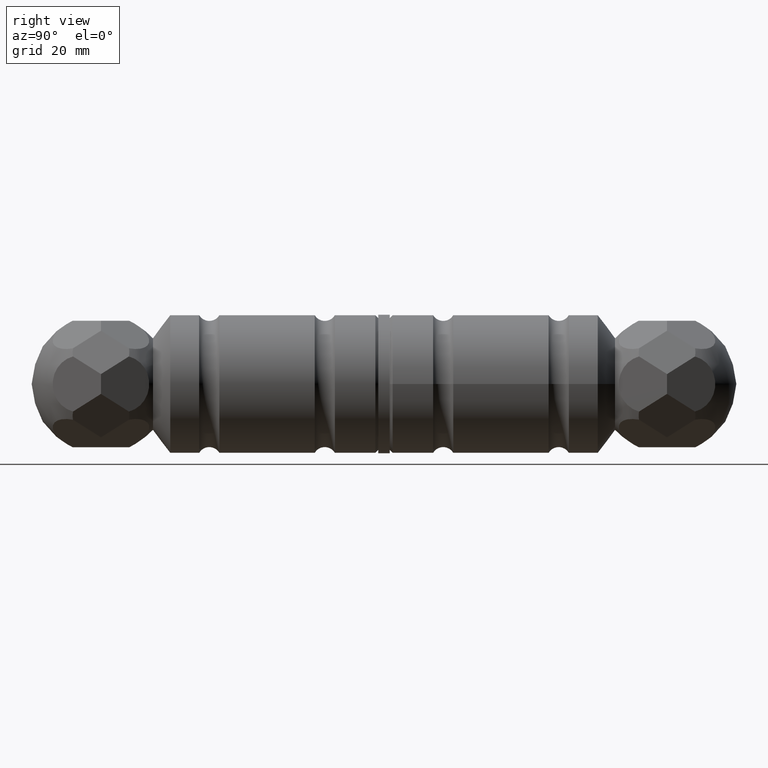
[diagram: clean part render]
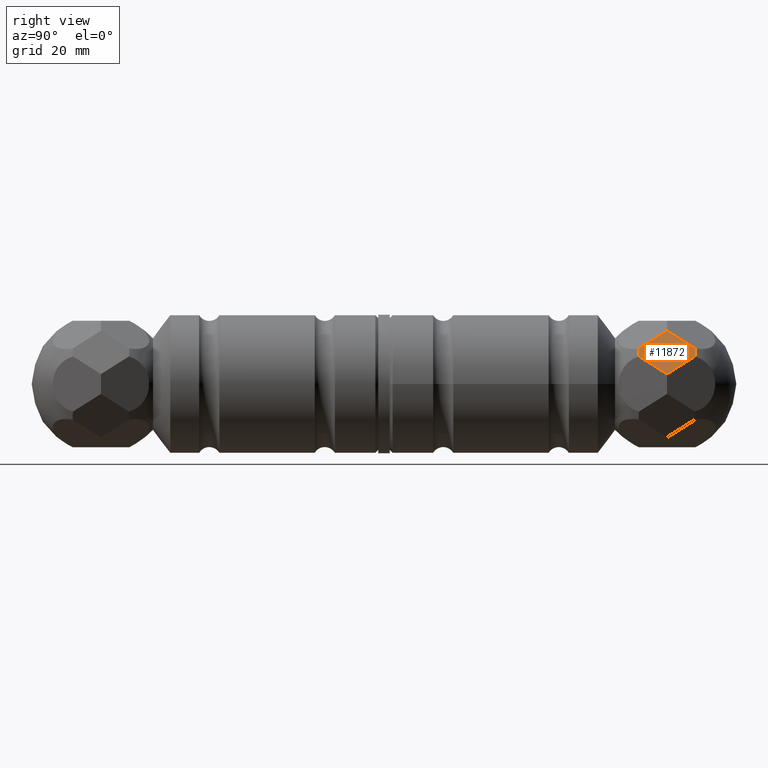
[diagram: same view with one face highlighted and labeled with its STEP entity id]
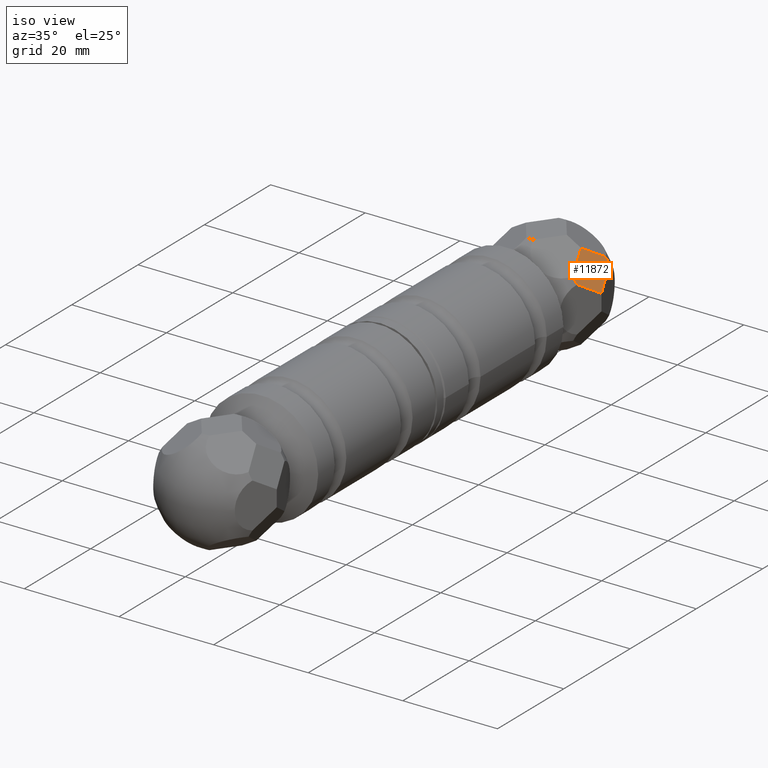
[diagram: same view with one face highlighted and labeled with its STEP entity id]
A machine part, right view. The second image highlights one B-rep face of the part: STEP entity #11872.
A second angle (iso view) of the same face is appended — the face is thin or edge-on in the first view.
In plain terms, the highlighted planar face has unit normal (-0.866, 0, -0.5).
Its self-contained STEP definition (entity closure, byte-faithful):
#338 = FACE_OUTER_BOUND ( 'NONE', #3197, .T. ) ;
#530 = DIRECTION ( 'NONE',  ( 0.8660254037844345998, -0.000000000000000000, 0.5000000000000072164 ) ) ;
#681 = EDGE_CURVE ( 'NONE', #10436, #8200, #11236, .T. ) ;
#871 = LINE ( 'NONE', #6743, #10309 ) ;
#1199 = CARTESIAN_POINT ( 'NONE',  ( 9.075063361975958642, 43.15934694148806017, 6.181529175150805244 ) ) ;
#1496 = VERTEX_POINT ( 'NONE', #9253 ) ;
#1973 = LINE ( 'NONE', #7622, #7147 ) ;
#1983 = VECTOR ( 'NONE', #10528, 1000.000000000000114 ) ;
#2041 = DIRECTION ( 'NONE',  ( -0.2942623679600596676, 0.8084792113654893919, 0.5096773720623416493 ) ) ;
#2046 = CARTESIAN_POINT ( 'NONE',  ( 10.90122265143456559, 45.93520489747793789, 3.018528503094673354 ) ) ;
#2169 = AXIS2_PLACEMENT_3D ( 'NONE', #10948, #530, #4337 ) ;
#2669 = AXIS2_PLACEMENT_3D ( 'NONE', #3402, #11874, #7221 ) ;
#2701 = CARTESIAN_POINT ( 'NONE',  ( 9.890892980903240428, 43.15934694148808859, 4.768470824849224243 ) ) ;
#2716 = AXIS2_PLACEMENT_3D ( 'NONE', #8663, #11362, #6682 ) ;
#2777 = ORIENTED_EDGE ( 'NONE', *, *, #11292, .T. ) ;
#3197 = EDGE_LOOP ( 'NONE', ( #4488, #7249, #8357, #2777, #7307, #6364 ) ) ;
#3286 = VERTEX_POINT ( 'NONE', #8097 ) ;
#3402 = CARTESIAN_POINT ( 'NONE',  ( 9.482978171439562232, 47.99999999999999289, 5.475000000000080469 ) ) ;
#3535 = EDGE_CURVE ( 'NONE', #9520, #1496, #871, .T. ) ;
#3628 = CARTESIAN_POINT ( 'NONE',  ( 9.890892980903247533, 52.84065305851191141, 4.768470824849213585 ) ) ;
#3968 = DIRECTION ( 'NONE',  ( -0.2942623679600598341, -0.8084792113654891699, 0.5096773720623419823 ) ) ;
#4043 = CARTESIAN_POINT ( 'NONE',  ( 10.90122265143457270, 50.06479510252207632, 3.018528503094658699 ) ) ;
#4337 = DIRECTION ( 'NONE',  ( -0.5000000000000073275, 0.000000000000000000, 0.8660254037844344888 ) ) ;
#4488 = ORIENTED_EDGE ( 'NONE', *, *, #3535, .F. ) ;
#4501 = LINE ( 'NONE', #2046, #1983 ) ;
#4728 = EDGE_CURVE ( 'NONE', #9520, #9401, #10301, .T. ) ;
#6364 = ORIENTED_EDGE ( 'NONE', *, *, #11861, .T. ) ;
#6682 = DIRECTION ( 'NONE',  ( -0.5000000000000072164, 0.000000000000000000, 0.8660254037844344888 ) ) ;
#6743 = CARTESIAN_POINT ( 'NONE',  ( 8.064733691444594399, 45.93520489747793789, 7.931471496905416529 ) ) ;
#7147 = VECTOR ( 'NONE', #3968, 1000.000000000000114 ) ;
#7221 = DIRECTION ( 'NONE',  ( -0.5000000000000073275, 0.000000000000000000, 0.8660254037844344888 ) ) ;
#7249 = ORIENTED_EDGE ( 'NONE', *, *, #4728, .T. ) ;
#7307 = ORIENTED_EDGE ( 'NONE', *, *, #681, .T. ) ;
#7622 = CARTESIAN_POINT ( 'NONE',  ( 8.064733691444585517, 50.06479510252206211, 7.931471496905430740 ) ) ;
#8097 = CARTESIAN_POINT ( 'NONE',  ( 11.65274660861123657, 48.00000000000002132, 1.716850826159487031 ) ) ;
#8200 = VERTEX_POINT ( 'NONE', #11931 ) ;
#8357 = ORIENTED_EDGE ( 'NONE', *, *, #10569, .F. ) ;
#8663 = CARTESIAN_POINT ( 'NONE',  ( 9.482978171439560455, 47.99999999999999289, 5.475000000000078693 ) ) ;
#9253 = CARTESIAN_POINT ( 'NONE',  ( 7.313209734267904771, 48.00000000000000711, 9.233149173840631718 ) ) ;
#9401 = VERTEX_POINT ( 'NONE', #2701 ) ;
#9520 = VERTEX_POINT ( 'NONE', #1199 ) ;
#10301 = CIRCLE ( 'NONE', #2669, 4.908920451586058498 ) ;
#10309 = VECTOR ( 'NONE', #2041, 1000.000000000000114 ) ;
#10436 = VERTEX_POINT ( 'NONE', #3628 ) ;
#10528 = DIRECTION ( 'NONE',  ( -0.2942623679600548936, -0.8084792113654963863, 0.5096773720623334336 ) ) ;
#10569 = EDGE_CURVE ( 'NONE', #3286, #9401, #4501, .T. ) ;
#10948 = CARTESIAN_POINT ( 'NONE',  ( 9.482978171439562232, 47.99999999999999289, 5.475000000000080469 ) ) ;
#11236 = CIRCLE ( 'NONE', #2169, 4.908920451586058498 ) ;
#11258 = VECTOR ( 'NONE', #11607, 1000.000000000000227 ) ;
#11292 = EDGE_CURVE ( 'NONE', #3286, #10436, #11399, .T. ) ;
#11362 = DIRECTION ( 'NONE',  ( -0.8660254037844344888, 0.000000000000000000, -0.5000000000000072164 ) ) ;
#11399 = LINE ( 'NONE', #4043, #11258 ) ;
#11405 = PLANE ( 'NONE',  #2716 ) ;
#11607 = DIRECTION ( 'NONE',  ( -0.2942623679600550601, 0.8084792113654961643, 0.5096773720623337667 ) ) ;
#11861 = EDGE_CURVE ( 'NONE', #8200, #1496, #1973, .T. ) ;
#11872 = ADVANCED_FACE ( 'NONE', ( #338 ), #11405, .F. ) ;
#11874 = DIRECTION ( 'NONE',  ( 0.8660254037844345998, -0.000000000000000000, 0.5000000000000072164 ) ) ;
#11931 = CARTESIAN_POINT ( 'NONE',  ( 9.075063361975949761, 52.84065305851193983, 6.181529175150822120 ) ) ;